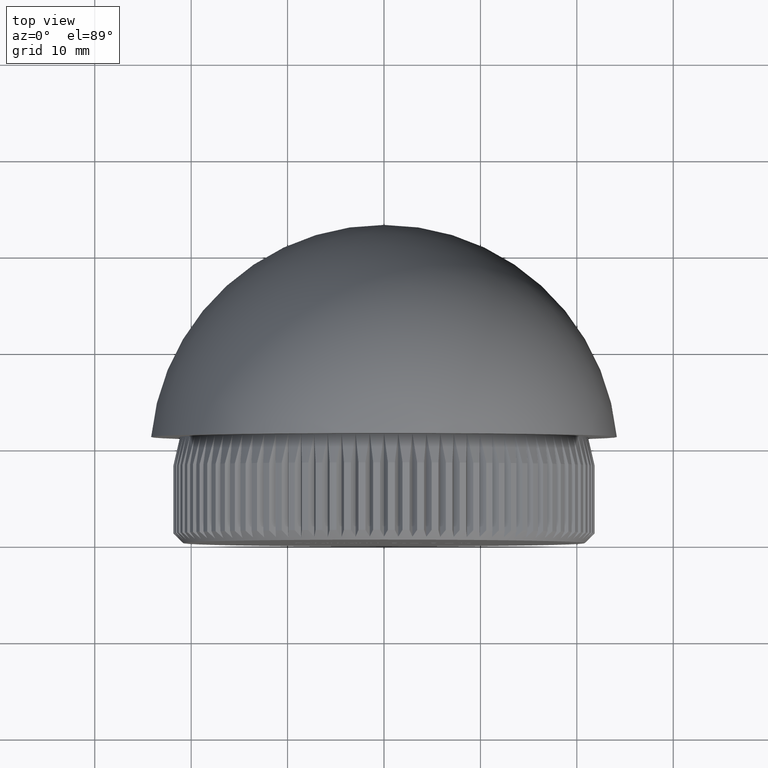
[diagram: clean part render]
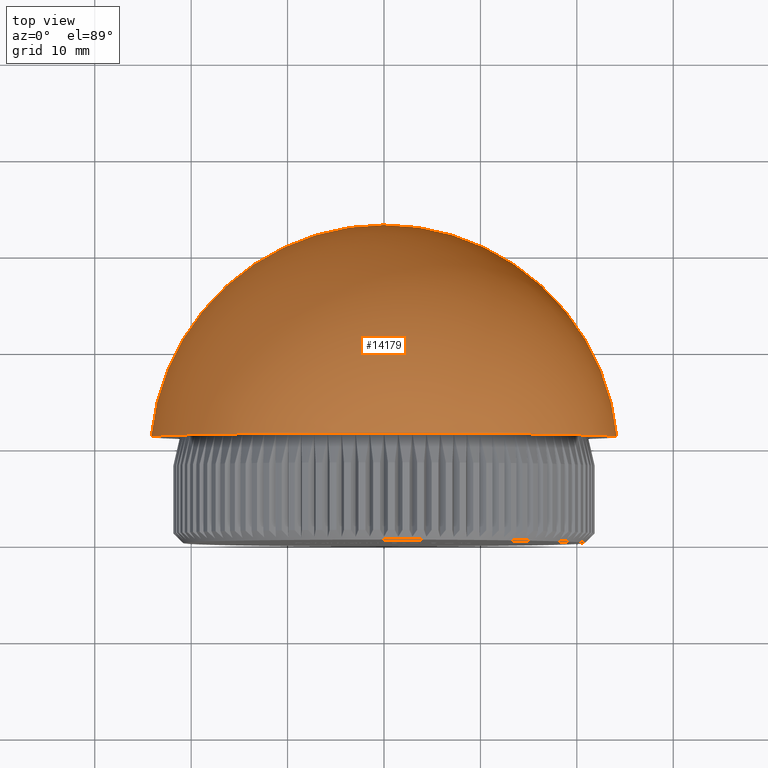
[diagram: same view with one face highlighted and labeled with its STEP entity id]
A machine part, top view. The second image highlights one B-rep face of the part: STEP entity #14179.
In plain terms, the highlighted spherical surface has radius 24.2551 mm.
Its self-contained STEP definition (entity closure, byte-faithful):
#475 = FACE_OUTER_BOUND ( 'NONE', #14844, .T. ) ;
#832 = ORIENTED_EDGE ( 'NONE', *, *, #8994, .T. ) ;
#1187 = CARTESIAN_POINT ( 'NONE',  ( 0.0000000000000000000, 8.744943181818182900, 0.0000000000000000000 ) ) ;
#1372 = DIRECTION ( 'NONE',  ( 0.0000000000000000000, 0.0000000000000000000, -1.000000000000000000 ) ) ;
#1429 = AXIS2_PLACEMENT_3D ( 'NONE', #13210, #20388, #18770 ) ;
#2267 = CARTESIAN_POINT ( 'NONE',  ( 24.14999999999999900, 11.00000000000000400, 0.0000000000000000000 ) ) ;
#3297 = SPHERICAL_SURFACE ( 'NONE', #1429, 24.25505681818181700 ) ;
#4345 = DIRECTION ( 'NONE',  ( 1.000000000000000000, 0.0000000000000000000, -1.224646799147353500E-016 ) ) ;
#5169 = AXIS2_PLACEMENT_3D ( 'NONE', #11771, #17149, #4345 ) ;
#6688 = ORIENTED_EDGE ( 'NONE', *, *, #16784, .F. ) ;
#6844 = CARTESIAN_POINT ( 'NONE',  ( 0.0000000000000000000, 11.00000000000000400, 0.0000000000000000000 ) ) ;
#8900 = VERTEX_POINT ( 'NONE', #20112 ) ;
#8994 = EDGE_CURVE ( 'NONE', #18016, #8900, #20872, .T. ) ;
#10179 = DIRECTION ( 'NONE',  ( -1.000000000000000000, 0.0000000000000000000, 0.0000000000000000000 ) ) ;
#11771 = CARTESIAN_POINT ( 'NONE',  ( 0.0000000000000000000, 8.744943181818182900, 0.0000000000000000000 ) ) ;
#12084 = DIRECTION ( 'NONE',  ( -0.0000000000000000000, -1.000000000000000000, -0.0000000000000000000 ) ) ;
#12726 = CARTESIAN_POINT ( 'NONE',  ( 1.485193884776177600E-015, 33.00000000000000000, 0.0000000000000000000 ) ) ;
#13210 = CARTESIAN_POINT ( 'NONE',  ( 0.0000000000000000000, 8.744943181818182900, 0.0000000000000000000 ) ) ;
#13706 = AXIS2_PLACEMENT_3D ( 'NONE', #1187, #17432, #10179 ) ;
#14179 = ADVANCED_FACE ( 'NONE', ( #475 ), #3297, .T. ) ;
#14844 = EDGE_LOOP ( 'NONE', ( #17274, #832, #6688 ) ) ;
#15237 = EDGE_CURVE ( 'NONE', #18016, #23049, #16662, .T. ) ;
#16662 = CIRCLE ( 'NONE', #13706, 24.25505681818181700 ) ;
#16707 = AXIS2_PLACEMENT_3D ( 'NONE', #6844, #12084, #1372 ) ;
#16784 = EDGE_CURVE ( 'NONE', #23049, #8900, #21343, .T. ) ;
#17149 = DIRECTION ( 'NONE',  ( 1.224646799147353200E-016, -0.0000000000000000000, 1.000000000000000000 ) ) ;
#17274 = ORIENTED_EDGE ( 'NONE', *, *, #15237, .F. ) ;
#17432 = DIRECTION ( 'NONE',  ( 0.0000000000000000000, 0.0000000000000000000, -1.000000000000000000 ) ) ;
#18016 = VERTEX_POINT ( 'NONE', #12726 ) ;
#18770 = DIRECTION ( 'NONE',  ( 1.000000000000000000, 0.0000000000000000000, 0.0000000000000000000 ) ) ;
#20112 = CARTESIAN_POINT ( 'NONE',  ( -24.14999999999999900, 11.00000000000000400, 2.957522019940857900E-015 ) ) ;
#20388 = DIRECTION ( 'NONE',  ( 0.0000000000000000000, 0.0000000000000000000, 1.000000000000000000 ) ) ;
#20872 = CIRCLE ( 'NONE', #5169, 24.25505681818181700 ) ;
#21343 = CIRCLE ( 'NONE', #16707, 24.14999999999999900 ) ;
#23049 = VERTEX_POINT ( 'NONE', #2267 ) ;